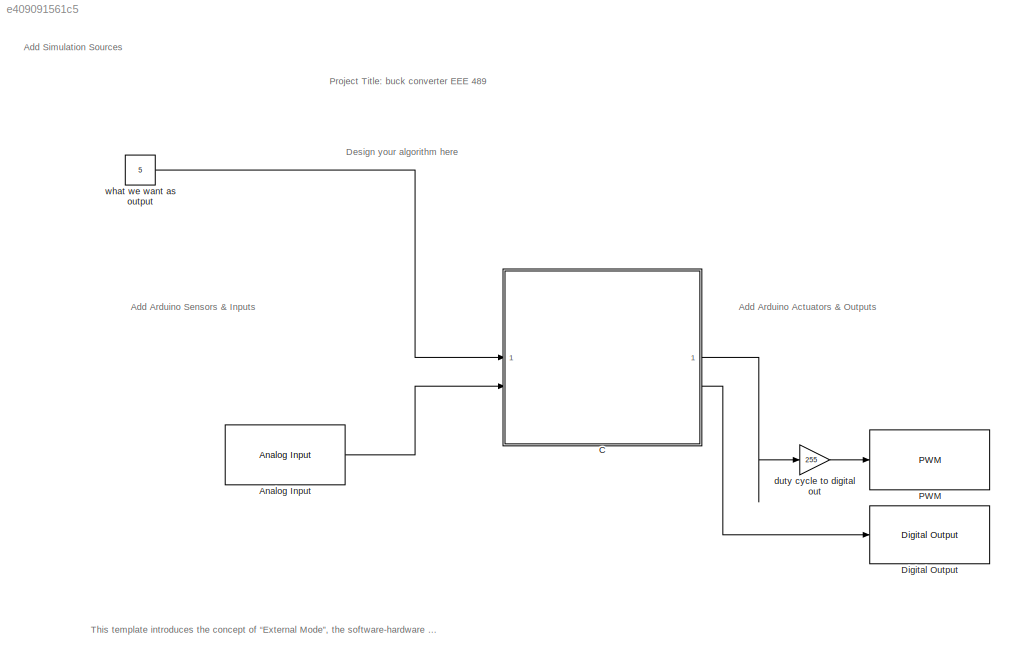
MODEL slx_e409091561c5
KIND model
CONFIG AbsTol = auto
CONFIG EnableMultiTasking = on
CONFIG FixedStep = auto
CONFIG MaxStep = auto
CONFIG MinStep = auto
CONFIG RelTol = 1e-3
CONFIG SampleTimeConstraint = Unconstrained
CONFIG SolverName = FixedStepDiscrete
CONFIG StartTime = 0.0
CONFIG StopTime = inf
BLOCK [Reference] Analog Input  REF=arduinolib/Analog Input
  SourceBlock = arduinolib/Analog Input
  SourceType = Arduino Analog Input
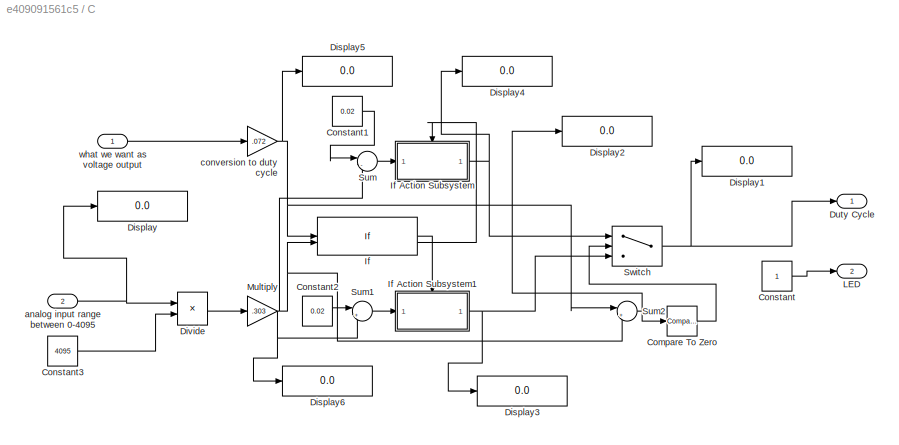
BLOCK [SubSystem] C
BLOCK [Reference] C/Compare To Zero  REF=simulink/Logic and Bit
Operations/Compare
To Zero
  SourceBlock = simulink/Logic and Bit\nOperations/Compare\nTo Zero
  SourceType = Compare To Zero
BLOCK [Constant] C/Constant
  SampleTime = 0.001
BLOCK [Constant] C/Constant1
  Value = 0.02
BLOCK [Constant] C/Constant2
  Value = 0.02
BLOCK [Constant] C/Constant3
  SampleTime = 0.001
  Value = 4095
BLOCK [Display] C/Display
  Decimation = 1
BLOCK [Display] C/Display1
  Decimation = 1
BLOCK [Display] C/Display2
  Decimation = 1
BLOCK [Display] C/Display3
  Decimation = 1
BLOCK [Display] C/Display4
  Decimation = 1
BLOCK [Display] C/Display5
  Decimation = 1
BLOCK [Display] C/Display6
  Decimation = 1
BLOCK [Product] C/Divide
  Inputs = */
BLOCK [Outport] C/Duty Cycle
  VectorParamsAs1DForOutWhenUnconnected = off
BLOCK [If] C/If
  ElseIfExpressions = u2 > u1
  IfExpression = u1 > u2
  NumInputs = 2
  ShowElse = off
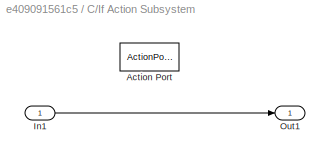
BLOCK [SubSystem] C/If Action Subsystem
  TreatAsAtomicUnit = on
BLOCK [ActionPort] C/If Action Subsystem/Action Port
  ActionPortLabel = elseif(u2 > u1)
BLOCK [Inport] C/If Action Subsystem/In1
BLOCK [Outport] C/If Action Subsystem/Out1
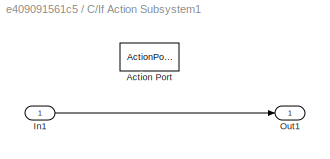
BLOCK [SubSystem] C/If Action Subsystem1
  TreatAsAtomicUnit = on
BLOCK [ActionPort] C/If Action Subsystem1/Action Port
  ActionPortLabel = if(u1 > u2 )
BLOCK [Inport] C/If Action Subsystem1/In1
BLOCK [Outport] C/If Action Subsystem1/Out1
BLOCK [Outport] C/LED
  Port = 2
  VectorParamsAs1DForOutWhenUnconnected = off
BLOCK [Gain] C/Multiply
  Gain = .303
  OutDataTypeStr = double
  ParamDataTypeStr = double
BLOCK [Sum] C/Sum
  Inputs = |-+
BLOCK [Sum] C/Sum1
  Inputs = |++
BLOCK [Sum] C/Sum2
  Inputs = |+-
BLOCK [Switch] C/Switch
  Criteria = u2 > Threshold
  InputSameDT = off
  SaturateOnIntegerOverflow = off
BLOCK [Inport] C/analog input range between 0-4095
  Port = 2
BLOCK [Gain] C/conversion to duty cycle
  Gain = .072
  OutDataTypeStr = double
  ParamDataTypeStr = double
BLOCK [Inport] C/what we want as voltage output
BLOCK [Reference] Digital Output  REF=arduinolib/Digital Output
  SourceBlock = arduinolib/Digital Output
  SourceType = Arduino Digital Output
BLOCK [Reference] PWM  REF=arduinolib/PWM
  SourceBlock = arduinolib/PWM
  SourceType = Arduino PWM
BLOCK [Gain] duty cycle to digital out
  Gain = 255
BLOCK [Constant] what we want as output
  OutDataTypeStr = double
  SampleTime = 0.001
  Value = 5
ANNOTATION (root): Project Title: buck converter EEE 489
ANNOTATION (root): This template introduces the concept of “External Mode”, the software-hardware interaction based on client/server architecture for monitoring live data from target hardware in Simulink. This mode allows to determine the optimal parameter settings by adjusting parameter values on the host computer and observing data/outputs from the target hardware
ANNOTATION (root): Add Arduino Actuators & Outputs
ANNOTATION (root): Add Arduino Sensors & Inputs
ANNOTATION (root): Add Simulation Sources
ANNOTATION (root): Design your algorithm here
LINE Analog Input:1 -> C:2
LINE C/Compare To Zero:1 -> C/Switch:2
LINE C/Constant1:1 -> C/Sum:1
LINE C/Constant2:1 -> C/Sum1:1
LINE C/Constant3:1 -> C/Divide:2
LINE C/Constant:1 -> C/LED:1
LINE C/Divide:1 -> C/Multiply:1
LINE C/If Action Subsystem/In1:1 -> C/If Action Subsystem/Out1:1
LINE C/If Action Subsystem1/In1:1 -> C/If Action Subsystem1/Out1:1
NET C/If Action Subsystem1:1 -> C/Display3:1, C/Switch:3
NET C/If Action Subsystem:1 -> C/Display4:1, C/Switch:1
LINE C/If:1 -> C/If Action Subsystem1:ifaction
LINE C/If:2 -> C/If Action Subsystem:ifaction
NET C/Multiply:1 -> C/Display6:1, C/If:2, C/Sum1:2, C/Sum2:2, C/Sum:2
LINE C/Sum1:1 -> C/If Action Subsystem1:1
NET C/Sum2:1 -> C/Compare To Zero:1, C/Display2:1
LINE C/Sum:1 -> C/If Action Subsystem:1
NET C/Switch:1 -> C/Display1:1, C/Duty Cycle:1
NET C/analog input range between 0-4095:1 -> C/Display:1, C/Divide:1
NET C/conversion to duty cycle:1 -> C/Display5:1, C/If:1, C/Sum2:1
LINE C/what we want as voltage output:1 -> C/conversion to duty cycle:1
LINE C:1 -> duty cycle to digital out:1
LINE C:2 -> Digital Output:1
LINE duty cycle to digital out:1 -> PWM:1
LINE what we want as output:1 -> C:1
note: NET lines group one-source signal fan-out (src -> all destinations, sorted); 1:1 wires keep LINE
